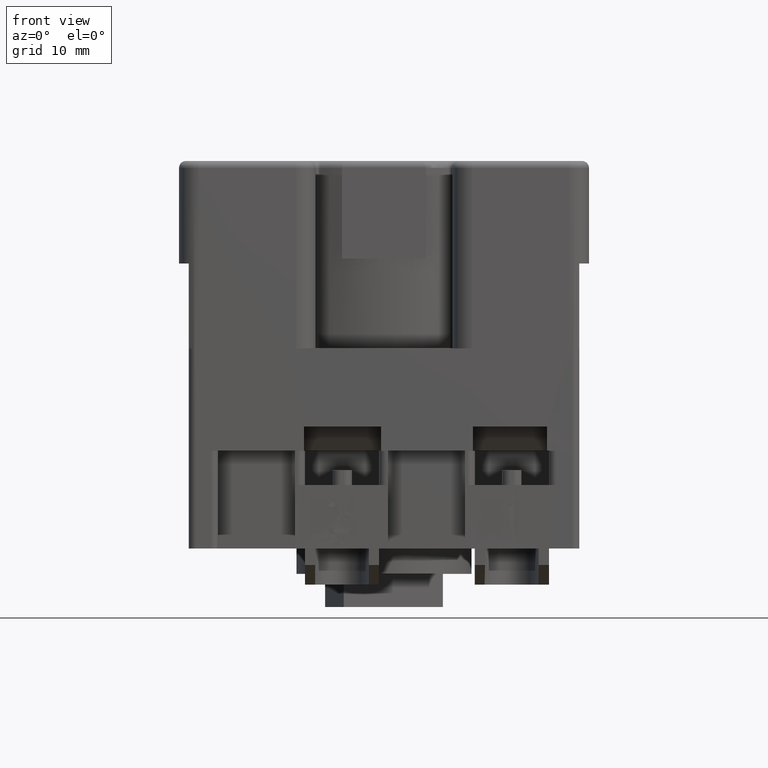
[diagram: clean part render]
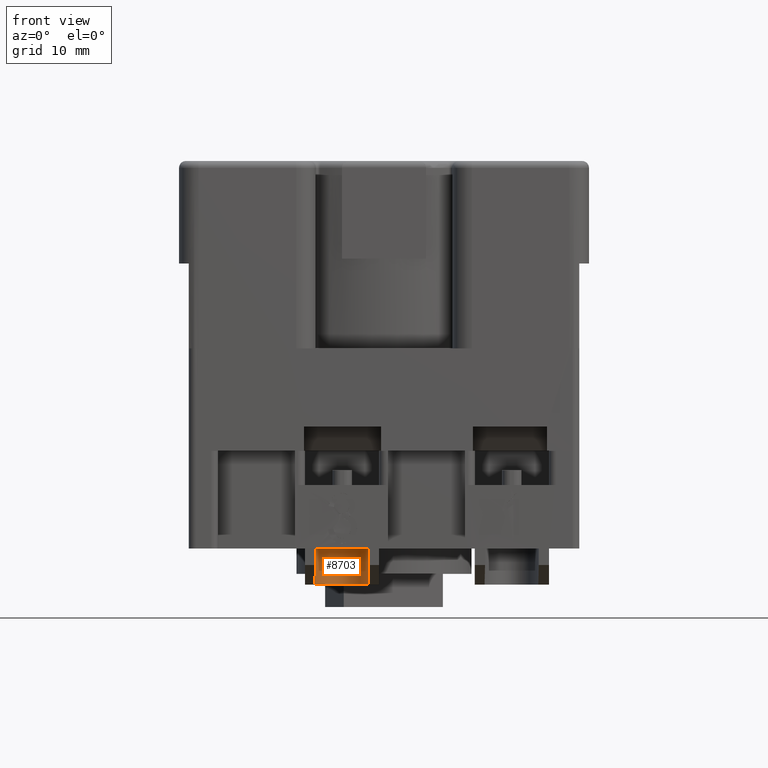
[diagram: same view with one face highlighted and labeled with its STEP entity id]
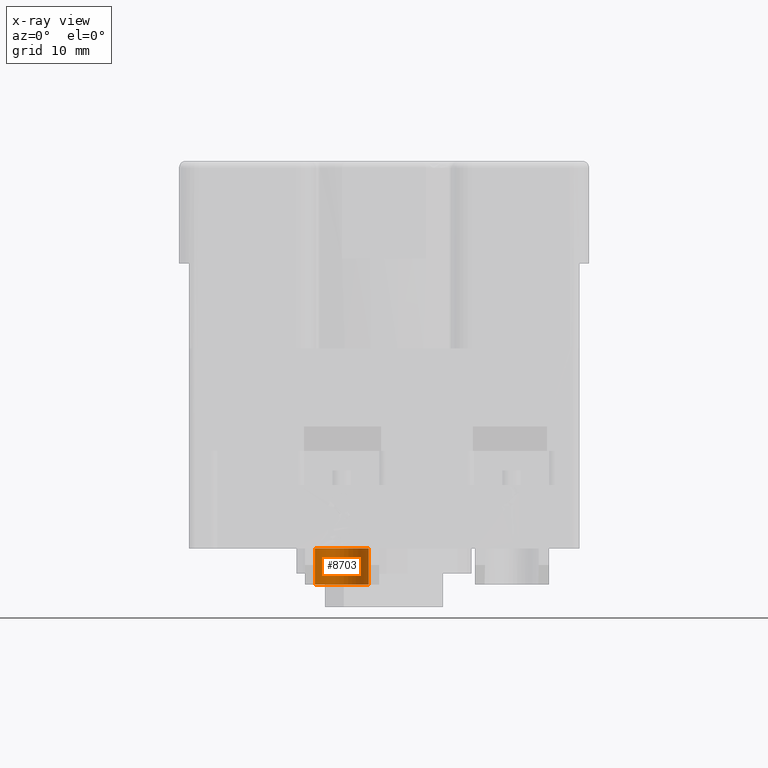
[diagram: x-ray of the same camera — body ghosted, the highlighted face saturated]
A machine part, front view. The second image highlights one B-rep face of the part: STEP entity #8703.
The next image is the same camera in x-ray: the body ghosted, the highlighted face saturated — about 0% of this face is hidden behind the body in this view.
In plain terms, the highlighted face is a freeform B-spline surface patch.
Its self-contained STEP definition (entity closure, byte-faithful):
#4600=CARTESIAN_POINT('',(-2.70310324219969,-15.482227886025001,-39.700000000000003));
#4601=VERTEX_POINT('',#4600);
#4602=CARTESIAN_POINT('',(-5.811702126480522,-15.374298333293201,-39.700000000000003));
#4603=VERTEX_POINT('',#4602);
#4604=CARTESIAN_POINT('',(-4.325510484911439,-19.770652786934683,-39.699999999999974));
#4605=DIRECTION('',(3.249976E-017,6.140856E-015,1.0));
#4606=DIRECTION('',(-0.005292309302974,-0.99998599563306,6.140942E-015));
#4607=AXIS2_PLACEMENT_3D('',#4604,#4605,#4606);
#4608=ELLIPSE('',#4607,5.070447966217026,3.013304806696255);
#4609=EDGE_CURVE('',#4601,#4603,#4608,.T.);
#4626=CARTESIAN_POINT('',(-7.071506224121,-17.709228693294801,-39.700000000000003));
#4627=VERTEX_POINT('',#4626);
#4636=CARTESIAN_POINT('',(-6.48172548955928,-16.249603394536898,-39.700000000000003));
#4637=VERTEX_POINT('',#4636);
#4638=CARTESIAN_POINT('',(-4.325510484946245,-19.770652786906719,-39.699999999999996));
#4639=DIRECTION('',(-1.763563E-017,-3.332265E-015,1.0));
#4640=DIRECTION('',(-0.005292309307266,-0.999985995633037,-3.332312E-015));
#4641=AXIS2_PLACEMENT_3D('',#4638,#4639,#4640);
#4642=ELLIPSE('',#4641,5.070447966177376,3.013304806663378);
#4643=EDGE_CURVE('',#4637,#4627,#4642,.T.);
#4645=CARTESIAN_POINT('',(-2.18881805064552,-16.174659042014,-39.700000000000003));
#4646=VERTEX_POINT('',#4645);
#4654=CARTESIAN_POINT('',(-1.55784948610527,-17.738409078795499,-39.700000000000003));
#4655=VERTEX_POINT('',#4654);
#4656=CARTESIAN_POINT('',(-4.325510484906218,-19.770652786930235,-39.700000000000003));
#4657=DIRECTION('',(0.0,0.0,1.0));
#4658=DIRECTION('',(-0.005292309302288,-0.999985995633063,0.0));
#4659=AXIS2_PLACEMENT_3D('',#4656,#4657,#4658);
#4660=ELLIPSE('',#4659,5.070447966211073,3.013304806690916);
#4661=EDGE_CURVE('',#4655,#4646,#4660,.T.);
#8364=CARTESIAN_POINT('',(-4.325510484961061,-19.770652786841456,-39.700000000000259));
#8365=DIRECTION('',(1.728635E-016,3.266270E-014,-1.0));
#8366=DIRECTION('',(0.005292309313335,0.999985995633005,3.266316E-014));
#8367=AXIS2_PLACEMENT_3D('',#8364,#8365,#8366);
#8368=ELLIPSE('',#8367,5.070447966116049,3.013304806643505);
#8369=EDGE_CURVE('',#4637,#4603,#8368,.T.);
#8380=CARTESIAN_POINT('',(-4.325510484581939,-19.770652786246288,-39.699999999998539));
#8381=DIRECTION('',(-3.147474E-013,-2.209434E-013,-1.0));
#8382=DIRECTION('',(0.00529230922494,0.999985995633473,-2.226061E-013));
#8383=AXIS2_PLACEMENT_3D('',#8380,#8381,#8382);
#8384=ELLIPSE('',#8383,5.070447965506694,3.013304806333466);
#8385=EDGE_CURVE('',#4601,#4646,#8384,.T.);
#8411=CARTESIAN_POINT('',(-7.071506224121,-17.709228693294801,-43.399999999999999));
#8412=VERTEX_POINT('',#8411);
#8419=CARTESIAN_POINT('',(-7.071506224121,-17.709228693294801,-39.700000000000003));
#8420=DIRECTION('',(0.0,0.0,-1.0));
#8421=VECTOR('',#8420,3.699999999999989);
#8422=LINE('',#8419,#8421);
#8423=EDGE_CURVE('',#4627,#8412,#8422,.T.);
#8642=CARTESIAN_POINT('',(-1.55784948610527,-17.738409078795499,-43.399999999999999));
#8643=VERTEX_POINT('',#8642);
#8660=CARTESIAN_POINT('',(-1.55784948610527,-17.738409078795499,-39.700000000000003));
#8661=DIRECTION('',(0.0,0.0,-1.0));
#8662=VECTOR('',#8661,3.699999999999989);
#8663=LINE('',#8660,#8662);
#8664=EDGE_CURVE('',#4655,#8643,#8663,.T.);
#8669=CARTESIAN_POINT('',(-1.55784948610535,-17.738409078795499,-43.585000000000001));
#8670=CARTESIAN_POINT('',(-2.885992685324469,-12.561913353099801,-43.584999999999994));
#8671=CARTESIAN_POINT('',(-5.808902534688021,-15.371603864183301,-43.585000000000008));
#8672=CARTESIAN_POINT('',(-6.66600301096926,-16.195504428809901,-43.585000000000008));
#8673=CARTESIAN_POINT('',(-7.071506224120981,-17.709228693294698,-43.585000000000022));
#8674=CARTESIAN_POINT('',(-1.55784948610535,-17.738409078795499,-39.514999999999993));
#8675=CARTESIAN_POINT('',(-2.885992685324469,-12.561913353099801,-39.514999999999986));
#8676=CARTESIAN_POINT('',(-5.808902534688021,-15.371603864183301,-39.515000000000001));
#8677=CARTESIAN_POINT('',(-6.66600301096926,-16.195504428809901,-39.515000000000001));
#8678=CARTESIAN_POINT('',(-7.071506224120981,-17.709228693294698,-39.515000000000015));
#8686=(BOUNDED_SURFACE()B_SPLINE_SURFACE(2,1,((#8669,#8674),(#8670,#8675),(#8671,#8676),(#8672,#8677),(#8673,#8678)),.UNSPECIFIED.,.F.,.F.,.F.)B_SPLINE_SURFACE_WITH_KNOTS((3,2,3),(2,2),(0.0,0.711536231551124,1.0),(0.0,4.070000000000011),.UNSPECIFIED.)GEOMETRIC_REPRESENTATION_ITEM()RATIONAL_B_SPLINE_SURFACE(((0.830082027055735,0.830082027055735),(0.60850615997884,0.60850615997884),(1.0,1.0),(0.841284556696659,0.841284556696659),(0.783331481165222,0.783331481165222)))REPRESENTATION_ITEM('')SURFACE());
#8687=ORIENTED_EDGE('',*,*,#4661,.T.);
#8688=ORIENTED_EDGE('',*,*,#8385,.F.);
#8689=ORIENTED_EDGE('',*,*,#4609,.T.);
#8690=ORIENTED_EDGE('',*,*,#8369,.F.);
#8691=ORIENTED_EDGE('',*,*,#4643,.T.);
#8692=ORIENTED_EDGE('',*,*,#8423,.T.);
#8693=CARTESIAN_POINT('',(-4.325510484913448,-19.770652786941515,-43.399999999999999));
#8694=DIRECTION('',(0.0,0.0,-1.0));
#8695=DIRECTION('',(0.005292309303584,0.999985995633056,0.0));
#8696=AXIS2_PLACEMENT_3D('',#8693,#8694,#8695);
#8697=ELLIPSE('',#8696,5.070447966223868,3.013304806698641);
#8698=EDGE_CURVE('',#8412,#8643,#8697,.T.);
#8699=ORIENTED_EDGE('',*,*,#8698,.T.);
#8700=ORIENTED_EDGE('',*,*,#8664,.F.);
#8701=EDGE_LOOP('',(#8687,#8688,#8689,#8690,#8691,#8692,#8699,#8700));
#8702=FACE_OUTER_BOUND('',#8701,.T.);
#8703=ADVANCED_FACE('',(#8702),#8686,.F.);